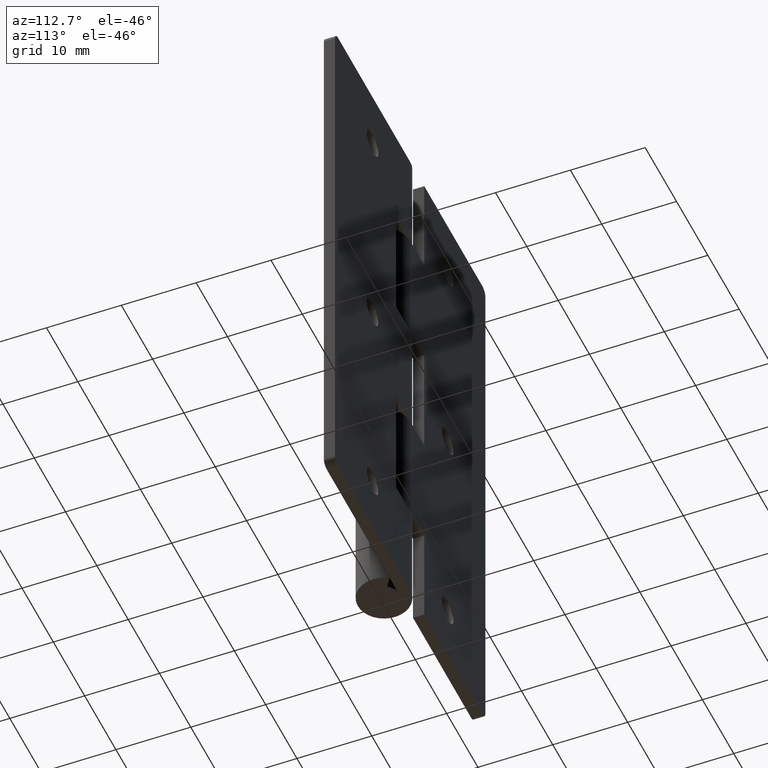
[diagram: clean part render]
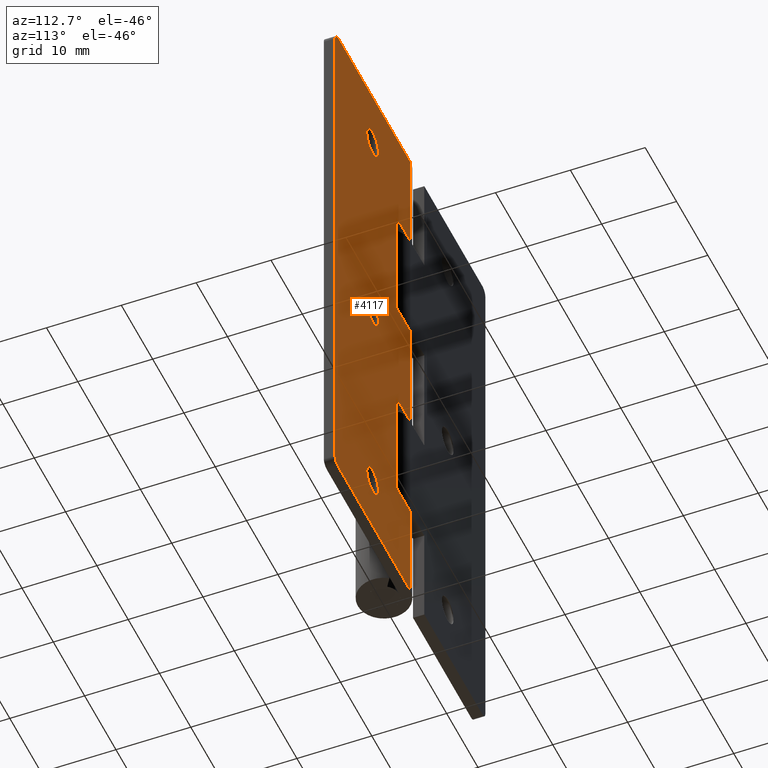
[diagram: same view with one face highlighted and labeled with its STEP entity id]
A machine part, auxiliary view. The second image highlights one B-rep face of the part: STEP entity #4117.
In plain terms, the highlighted face is a freeform B-spline surface patch.
Its self-contained STEP definition (entity closure, byte-faithful):
#2225=CARTESIAN_POINT('',(13.837918003186140,3.500000000000000,67.788921729569537));
#2226=VERTEX_POINT('',#2225);
#2232=CARTESIAN_POINT('',(12.0,3.500000000000000,66.150008000000099));
#2233=VERTEX_POINT('',#2232);
#2234=CARTESIAN_POINT('',(13.837918003186143,3.500000000000000,67.788921729569537));
#2235=CARTESIAN_POINT('',(13.649687487106965,3.500000000000000,66.150008000000099));
#2236=CARTESIAN_POINT('',(12.0,3.500000000000000,66.150008000000099));
#2244=(BOUNDED_CURVE()B_SPLINE_CURVE(2,(#2234,#2235,#2236),.UNSPECIFIED.,.F.,.U.)B_SPLINE_CURVE_WITH_KNOTS((3,3),(0.269767763364742,0.500000000000000),.UNSPECIFIED.)CURVE()GEOMETRIC_REPRESENTATION_ITEM()RATIONAL_B_SPLINE_CURVE((0.957343721689604,0.730266156549116,1.0))REPRESENTATION_ITEM(''));
#2245=EDGE_CURVE('',#2226,#2233,#2244,.T.);
#2247=CARTESIAN_POINT('',(10.153450622949880,3.500000000000000,67.887068201364613));
#2248=VERTEX_POINT('',#2247);
#2249=CARTESIAN_POINT('',(12.0,3.500000000000000,66.150008000000099));
#2250=CARTESIAN_POINT('',(10.259693777161120,3.500000000000000,66.150008000000099));
#2251=CARTESIAN_POINT('',(10.153450622949883,3.500000000000000,67.887068201364613));
#2259=(BOUNDED_CURVE()B_SPLINE_CURVE(2,(#2249,#2250,#2251),.UNSPECIFIED.,.F.,.U.)B_SPLINE_CURVE_WITH_KNOTS((3,3),(0.500000000000000,0.739332962149275),.UNSPECIFIED.)CURVE()GEOMETRIC_REPRESENTATION_ITEM()RATIONAL_B_SPLINE_CURVE((1.0,0.719603993391763,0.976072041474541))REPRESENTATION_ITEM(''));
#2260=EDGE_CURVE('',#2233,#2248,#2259,.T.);
#2359=CARTESIAN_POINT('',(12.0,3.500000000000000,69.850008000000102));
#2360=VERTEX_POINT('',#2359);
#2361=CARTESIAN_POINT('',(10.153450622949883,3.500000000000000,67.887068201364613));
#2362=CARTESIAN_POINT('',(10.150000000000000,3.500000000000000,67.943485387400315));
#2363=CARTESIAN_POINT('',(10.150000000000000,3.500000000000000,68.000008000000093));
#2364=CARTESIAN_POINT('',(10.150000000000000,3.499999999999999,69.850008000000102));
#2365=CARTESIAN_POINT('',(12.0,3.500000000000000,69.850008000000102));
#2373=(BOUNDED_CURVE()B_SPLINE_CURVE(2,(#2361,#2362,#2363,#2364,#2365),.UNSPECIFIED.,.F.,.U.)B_SPLINE_CURVE_WITH_KNOTS((3,2,3),(0.739332962149274,0.750000000000000,1.0),.UNSPECIFIED.)CURVE()GEOMETRIC_REPRESENTATION_ITEM()RATIONAL_B_SPLINE_CURVE((0.976072041474539,0.987502787794783,1.0,0.707106781186548,1.0))REPRESENTATION_ITEM(''));
#2374=EDGE_CURVE('',#2248,#2360,#2373,.T.);
#2376=CARTESIAN_POINT('',(12.0,3.500000000000000,69.850008000000102));
#2377=CARTESIAN_POINT('',(13.850000000000000,3.499999999999999,69.850008000000102));
#2378=CARTESIAN_POINT('',(13.850000000000000,3.500000000000000,68.000008000000093));
#2379=CARTESIAN_POINT('',(13.850000000000009,3.500000000000000,67.894119074141045));
#2380=CARTESIAN_POINT('',(13.837918003186141,3.500000000000000,67.788921729569537));
#2388=(BOUNDED_CURVE()B_SPLINE_CURVE(2,(#2376,#2377,#2378,#2379,#2380),.UNSPECIFIED.,.F.,.U.)B_SPLINE_CURVE_WITH_KNOTS((3,2,3),(0.0,0.250000000000000,0.269767763364742),.UNSPECIFIED.)CURVE()GEOMETRIC_REPRESENTATION_ITEM()RATIONAL_B_SPLINE_CURVE((1.0,0.707106781186548,1.0,0.976840624637432,0.957343721689604))REPRESENTATION_ITEM(''));
#2389=EDGE_CURVE('',#2360,#2226,#2388,.T.);
#2557=CARTESIAN_POINT('',(13.837918003186140,3.500000000000000,37.788921729569573));
#2558=VERTEX_POINT('',#2557);
#2564=CARTESIAN_POINT('',(12.0,3.500000000000000,36.150008000000099));
#2565=VERTEX_POINT('',#2564);
#2566=CARTESIAN_POINT('',(13.837918003186140,3.500000000000000,37.788921729569566));
#2567=CARTESIAN_POINT('',(13.649687487106975,3.500000000000000,36.150008000000106));
#2568=CARTESIAN_POINT('',(12.0,3.500000000000000,36.150008000000099));
#2576=(BOUNDED_CURVE()B_SPLINE_CURVE(2,(#2566,#2567,#2568),.UNSPECIFIED.,.F.,.U.)B_SPLINE_CURVE_WITH_KNOTS((3,3),(0.269767763364741,0.500000000000000),.UNSPECIFIED.)CURVE()GEOMETRIC_REPRESENTATION_ITEM()RATIONAL_B_SPLINE_CURVE((0.957343721689606,0.730266156549114,1.0))REPRESENTATION_ITEM(''));
#2577=EDGE_CURVE('',#2558,#2565,#2576,.T.);
#2579=CARTESIAN_POINT('',(10.153450622949880,3.500000000000000,37.887068201364613));
#2580=VERTEX_POINT('',#2579);
#2581=CARTESIAN_POINT('',(12.0,3.500000000000000,36.150008000000099));
#2582=CARTESIAN_POINT('',(10.259693777161143,3.500000000000000,36.150008000000099));
#2583=CARTESIAN_POINT('',(10.153450622949883,3.500000000000000,37.887068201364613));
#2591=(BOUNDED_CURVE()B_SPLINE_CURVE(2,(#2581,#2582,#2583),.UNSPECIFIED.,.F.,.U.)B_SPLINE_CURVE_WITH_KNOTS((3,3),(0.500000000000000,0.739332962149272),.UNSPECIFIED.)CURVE()GEOMETRIC_REPRESENTATION_ITEM()RATIONAL_B_SPLINE_CURVE((1.0,0.719603993391766,0.976072041474537))REPRESENTATION_ITEM(''));
#2592=EDGE_CURVE('',#2565,#2580,#2591,.T.);
#2691=CARTESIAN_POINT('',(12.0,3.500000000000000,39.850008000000102));
#2692=VERTEX_POINT('',#2691);
#2693=CARTESIAN_POINT('',(10.153450622949883,3.500000000000000,37.887068201364613));
#2694=CARTESIAN_POINT('',(10.149999999999995,3.500000000000000,37.943485387400315));
#2695=CARTESIAN_POINT('',(10.150000000000000,3.500000000000000,38.000008000000101));
#2696=CARTESIAN_POINT('',(10.150000000000000,3.499999999999999,39.850008000000095));
#2697=CARTESIAN_POINT('',(12.0,3.500000000000000,39.850008000000102));
#2705=(BOUNDED_CURVE()B_SPLINE_CURVE(2,(#2693,#2694,#2695,#2696,#2697),.UNSPECIFIED.,.F.,.U.)B_SPLINE_CURVE_WITH_KNOTS((3,2,3),(0.739332962149272,0.750000000000000,1.0),.UNSPECIFIED.)CURVE()GEOMETRIC_REPRESENTATION_ITEM()RATIONAL_B_SPLINE_CURVE((0.976072041474537,0.987502787794782,1.0,0.707106781186548,1.0))REPRESENTATION_ITEM(''));
#2706=EDGE_CURVE('',#2580,#2692,#2705,.T.);
#2708=CARTESIAN_POINT('',(12.0,3.500000000000000,39.850008000000102));
#2709=CARTESIAN_POINT('',(13.850000000000000,3.499999999999999,39.850008000000095));
#2710=CARTESIAN_POINT('',(13.850000000000000,3.500000000000000,38.000008000000101));
#2711=CARTESIAN_POINT('',(13.850000000000000,3.500000000000000,37.894119074141059));
#2712=CARTESIAN_POINT('',(13.837918003186138,3.500000000000000,37.788921729569566));
#2720=(BOUNDED_CURVE()B_SPLINE_CURVE(2,(#2708,#2709,#2710,#2711,#2712),.UNSPECIFIED.,.F.,.U.)B_SPLINE_CURVE_WITH_KNOTS((3,2,3),(0.0,0.250000000000000,0.269767763364741),.UNSPECIFIED.)CURVE()GEOMETRIC_REPRESENTATION_ITEM()RATIONAL_B_SPLINE_CURVE((1.0,0.707106781186548,1.0,0.976840624637433,0.957343721689606))REPRESENTATION_ITEM(''));
#2721=EDGE_CURVE('',#2692,#2558,#2720,.T.);
#2889=CARTESIAN_POINT('',(13.837918003186140,3.500000000000000,7.788913729569559));
#2890=VERTEX_POINT('',#2889);
#2896=CARTESIAN_POINT('',(12.0,3.500000000000000,6.150000000000101));
#2897=VERTEX_POINT('',#2896);
#2898=CARTESIAN_POINT('',(13.837918003186136,3.500000000000000,7.788913729569559));
#2899=CARTESIAN_POINT('',(13.649687487106974,3.500000000000000,6.150000000000102));
#2900=CARTESIAN_POINT('',(12.0,3.500000000000000,6.150000000000101));
#2908=(BOUNDED_CURVE()B_SPLINE_CURVE(2,(#2898,#2899,#2900),.UNSPECIFIED.,.F.,.U.)B_SPLINE_CURVE_WITH_KNOTS((3,3),(0.269767763364741,0.500000000000000),.UNSPECIFIED.)CURVE()GEOMETRIC_REPRESENTATION_ITEM()RATIONAL_B_SPLINE_CURVE((0.957343721689606,0.730266156549115,1.0))REPRESENTATION_ITEM(''));
#2909=EDGE_CURVE('',#2890,#2897,#2908,.T.);
#2911=CARTESIAN_POINT('',(10.153450622949880,3.500000000000000,7.887060201364612));
#2912=VERTEX_POINT('',#2911);
#2913=CARTESIAN_POINT('',(12.0,3.500000000000000,6.150000000000101));
#2914=CARTESIAN_POINT('',(10.259693777161143,3.500000000000000,6.150000000000102));
#2915=CARTESIAN_POINT('',(10.153450622949883,3.500000000000000,7.887060201364612));
#2923=(BOUNDED_CURVE()B_SPLINE_CURVE(2,(#2913,#2914,#2915),.UNSPECIFIED.,.F.,.U.)B_SPLINE_CURVE_WITH_KNOTS((3,3),(0.500000000000000,0.739332962149272),.UNSPECIFIED.)CURVE()GEOMETRIC_REPRESENTATION_ITEM()RATIONAL_B_SPLINE_CURVE((1.0,0.719603993391766,0.976072041474537))REPRESENTATION_ITEM(''));
#2924=EDGE_CURVE('',#2897,#2912,#2923,.T.);
#3023=CARTESIAN_POINT('',(12.0,3.500000000000000,9.850000000000101));
#3024=VERTEX_POINT('',#3023);
#3025=CARTESIAN_POINT('',(10.153450622949883,3.500000000000000,7.887060201364612));
#3026=CARTESIAN_POINT('',(10.149999999999995,3.500000000000000,7.943477387400318));
#3027=CARTESIAN_POINT('',(10.150000000000000,3.500000000000000,8.000000000000101));
#3028=CARTESIAN_POINT('',(10.150000000000000,3.499999999999999,9.850000000000099));
#3029=CARTESIAN_POINT('',(12.0,3.500000000000000,9.850000000000101));
#3037=(BOUNDED_CURVE()B_SPLINE_CURVE(2,(#3025,#3026,#3027,#3028,#3029),.UNSPECIFIED.,.F.,.U.)B_SPLINE_CURVE_WITH_KNOTS((3,2,3),(0.739332962149272,0.750000000000000,1.0),.UNSPECIFIED.)CURVE()GEOMETRIC_REPRESENTATION_ITEM()RATIONAL_B_SPLINE_CURVE((0.976072041474537,0.987502787794782,1.0,0.707106781186548,1.0))REPRESENTATION_ITEM(''));
#3038=EDGE_CURVE('',#2912,#3024,#3037,.T.);
#3040=CARTESIAN_POINT('',(12.0,3.500000000000000,9.850000000000101));
#3041=CARTESIAN_POINT('',(13.850000000000000,3.499999999999999,9.850000000000099));
#3042=CARTESIAN_POINT('',(13.850000000000000,3.500000000000000,8.000000000000101));
#3043=CARTESIAN_POINT('',(13.850000000000005,3.500000000000000,7.894111074141056));
#3044=CARTESIAN_POINT('',(13.837918003186138,3.500000000000000,7.788913729569559));
#3052=(BOUNDED_CURVE()B_SPLINE_CURVE(2,(#3040,#3041,#3042,#3043,#3044),.UNSPECIFIED.,.F.,.U.)B_SPLINE_CURVE_WITH_KNOTS((3,2,3),(0.0,0.250000000000000,0.269767763364742),.UNSPECIFIED.)CURVE()GEOMETRIC_REPRESENTATION_ITEM()RATIONAL_B_SPLINE_CURVE((1.0,0.707106781186548,1.0,0.976840624637433,0.957343721689605))REPRESENTATION_ITEM(''));
#3053=EDGE_CURVE('',#3024,#2890,#3052,.T.);
#3191=CARTESIAN_POINT('',(4.500000000000000,3.499999999999950,62.000008000000101));
#3192=VERTEX_POINT('',#3191);
#3200=CARTESIAN_POINT('',(4.500000000000000,3.499999999999950,46.000008000000101));
#3201=VERTEX_POINT('',#3200);
#3202=CARTESIAN_POINT('',(4.500000000000000,3.499999999999950,62.000008000000101));
#3203=CARTESIAN_POINT('',(4.500000000000000,3.499999999999950,46.000008000000101));
#3204=QUASI_UNIFORM_CURVE('',1,(#3202,#3203),.UNSPECIFIED.,.F.,.U.);
#3205=EDGE_CURVE('',#3192,#3201,#3204,.T.);
#3228=CARTESIAN_POINT('',(0.0,3.499999999999950,46.000008000000101));
#3229=VERTEX_POINT('',#3228);
#3230=CARTESIAN_POINT('',(4.500000000000000,3.499999999999950,46.000008000000101));
#3231=CARTESIAN_POINT('',(0.0,3.499999999999950,46.000008000000101));
#3232=QUASI_UNIFORM_CURVE('',1,(#3230,#3231),.UNSPECIFIED.,.F.,.U.);
#3233=EDGE_CURVE('',#3201,#3229,#3232,.T.);
#3299=CARTESIAN_POINT('',(0.0,3.499999999999950,62.000008000000101));
#3300=VERTEX_POINT('',#3299);
#3320=CARTESIAN_POINT('',(0.0,3.499999999999950,62.000008000000101));
#3321=CARTESIAN_POINT('',(4.500000000000000,3.499999999999950,62.000008000000101));
#3322=QUASI_UNIFORM_CURVE('',1,(#3320,#3321),.UNSPECIFIED.,.F.,.U.);
#3323=EDGE_CURVE('',#3300,#3192,#3322,.T.);
#3367=CARTESIAN_POINT('',(4.500000000000000,3.499999999999950,30.000008000000101));
#3368=VERTEX_POINT('',#3367);
#3376=CARTESIAN_POINT('',(4.500000000000000,3.499999999999950,14.0));
#3377=VERTEX_POINT('',#3376);
#3378=CARTESIAN_POINT('',(4.500000000000000,3.499999999999950,30.000008000000101));
#3379=CARTESIAN_POINT('',(4.500000000000000,3.499999999999950,14.0));
#3380=QUASI_UNIFORM_CURVE('',1,(#3378,#3379),.UNSPECIFIED.,.F.,.U.);
#3381=EDGE_CURVE('',#3368,#3377,#3380,.T.);
#3404=CARTESIAN_POINT('',(0.0,3.499999999999950,14.0));
#3405=VERTEX_POINT('',#3404);
#3406=CARTESIAN_POINT('',(4.500000000000000,3.499999999999950,14.0));
#3407=CARTESIAN_POINT('',(0.0,3.499999999999950,14.0));
#3408=QUASI_UNIFORM_CURVE('',1,(#3406,#3407),.UNSPECIFIED.,.F.,.U.);
#3409=EDGE_CURVE('',#3377,#3405,#3408,.T.);
#3475=CARTESIAN_POINT('',(0.0,3.499999999999950,30.000008000000101));
#3476=VERTEX_POINT('',#3475);
#3496=CARTESIAN_POINT('',(0.0,3.499999999999950,30.000008000000101));
#3497=CARTESIAN_POINT('',(4.500000000000000,3.499999999999950,30.000008000000101));
#3498=QUASI_UNIFORM_CURVE('',1,(#3496,#3497),.UNSPECIFIED.,.F.,.U.);
#3499=EDGE_CURVE('',#3476,#3368,#3498,.T.);
#3569=CARTESIAN_POINT('',(23.999991999999899,3.499999999999950,75.000008000000108));
#3570=VERTEX_POINT('',#3569);
#3576=CARTESIAN_POINT('',(22.999991999999899,3.500000000000000,76.000008000000093));
#3577=VERTEX_POINT('',#3576);
#3578=CARTESIAN_POINT('',(23.999991999999899,3.499999999999950,75.000008000000108));
#3579=CARTESIAN_POINT('',(23.999991999999896,3.499999999999949,76.000008000000108));
#3580=CARTESIAN_POINT('',(22.999991999999899,3.499999999999950,76.000008000000108));
#3588=(BOUNDED_CURVE()B_SPLINE_CURVE(2,(#3578,#3579,#3580),.UNSPECIFIED.,.F.,.U.)CURVE()GEOMETRIC_REPRESENTATION_ITEM()QUASI_UNIFORM_CURVE()RATIONAL_B_SPLINE_CURVE((1.0,0.707106781186548,1.0))REPRESENTATION_ITEM(''));
#3589=EDGE_CURVE('',#3570,#3577,#3588,.T.);
#3630=CARTESIAN_POINT('',(22.999991999999899,3.499999999999950,0.0));
#3631=VERTEX_POINT('',#3630);
#3637=CARTESIAN_POINT('',(23.999991999999899,3.499999999999950,1.0));
#3638=VERTEX_POINT('',#3637);
#3639=CARTESIAN_POINT('',(22.999991999999899,3.499999999999950,0.0));
#3640=CARTESIAN_POINT('',(23.999991999999896,3.499999999999949,0.0));
#3641=CARTESIAN_POINT('',(23.999991999999899,3.499999999999950,1.0));
#3649=(BOUNDED_CURVE()B_SPLINE_CURVE(2,(#3639,#3640,#3641),.UNSPECIFIED.,.F.,.U.)CURVE()GEOMETRIC_REPRESENTATION_ITEM()QUASI_UNIFORM_CURVE()RATIONAL_B_SPLINE_CURVE((1.0,0.707106781186548,1.0))REPRESENTATION_ITEM(''));
#3650=EDGE_CURVE('',#3631,#3638,#3649,.T.);
#3673=CARTESIAN_POINT('',(0.0,3.500000000000000,76.000008000000093));
#3674=VERTEX_POINT('',#3673);
#3675=CARTESIAN_POINT('',(22.999991999999899,3.500000000000000,76.000008000000093));
#3676=CARTESIAN_POINT('',(0.0,3.500000000000000,76.000008000000093));
#3677=QUASI_UNIFORM_CURVE('',1,(#3675,#3676),.UNSPECIFIED.,.F.,.U.);
#3678=EDGE_CURVE('',#3577,#3674,#3677,.T.);
#3771=CARTESIAN_POINT('',(0.0,3.500000000000000,0.0));
#3772=VERTEX_POINT('',#3771);
#3792=CARTESIAN_POINT('',(22.999991999999899,3.499999999999950,0.0));
#3793=CARTESIAN_POINT('',(0.0,3.500000000000000,0.0));
#3794=QUASI_UNIFORM_CURVE('',1,(#3792,#3793),.UNSPECIFIED.,.F.,.U.);
#3795=EDGE_CURVE('',#3631,#3772,#3794,.T.);
#3805=CARTESIAN_POINT('',(23.999991999999899,3.499999999999950,1.0));
#3806=CARTESIAN_POINT('',(23.999991999999899,3.499999999999950,75.000008000000108));
#3807=QUASI_UNIFORM_CURVE('',1,(#3805,#3806),.UNSPECIFIED.,.F.,.U.);
#3808=EDGE_CURVE('',#3638,#3570,#3807,.T.);
#3863=CARTESIAN_POINT('',(0.0,3.500000000000000,0.0));
#3864=CARTESIAN_POINT('',(0.0,3.499999999999950,14.0));
#3865=QUASI_UNIFORM_CURVE('',1,(#3863,#3864),.UNSPECIFIED.,.F.,.U.);
#3866=EDGE_CURVE('',#3772,#3405,#3865,.T.);
#3969=CARTESIAN_POINT('',(0.0,3.499999999999950,30.000008000000101));
#3970=CARTESIAN_POINT('',(0.0,3.499999999999950,46.000008000000101));
#3971=QUASI_UNIFORM_CURVE('',1,(#3969,#3970),.UNSPECIFIED.,.F.,.U.);
#3972=EDGE_CURVE('',#3476,#3229,#3971,.T.);
#4004=CARTESIAN_POINT('',(0.0,3.499999999999950,62.000008000000101));
#4005=CARTESIAN_POINT('',(0.0,3.500000000000000,76.000008000000093));
#4006=QUASI_UNIFORM_CURVE('',1,(#4004,#4005),.UNSPECIFIED.,.F.,.U.);
#4007=EDGE_CURVE('',#3300,#3674,#4006,.T.);
#4078=CARTESIAN_POINT('',(-1.198799553883352,3.500000000000000,-3.796200252297245));
#4079=CARTESIAN_POINT('',(-1.198799553883352,3.500000000000000,79.796210290776401));
#4080=CARTESIAN_POINT('',(25.198792197613201,3.500000000000000,-3.796200252297245));
#4081=CARTESIAN_POINT('',(25.198792197613201,3.500000000000000,79.796210290776401));
#4082=B_SPLINE_SURFACE_WITH_KNOTS('',1,1,((#4078,#4080),(#4079,#4081)),.UNSPECIFIED.,.F.,.F.,.U.,(2,2),(2,2),(0.0,83.592410543073640),(0.0,26.397591751496549),.UNSPECIFIED.);
#4083=ORIENTED_EDGE('',*,*,#3205,.F.);
#4084=ORIENTED_EDGE('',*,*,#3323,.F.);
#4085=ORIENTED_EDGE('',*,*,#4007,.T.);
#4086=ORIENTED_EDGE('',*,*,#3678,.F.);
#4087=ORIENTED_EDGE('',*,*,#3589,.F.);
#4088=ORIENTED_EDGE('',*,*,#3808,.F.);
#4089=ORIENTED_EDGE('',*,*,#3650,.F.);
#4090=ORIENTED_EDGE('',*,*,#3795,.T.);
#4091=ORIENTED_EDGE('',*,*,#3866,.T.);
#4092=ORIENTED_EDGE('',*,*,#3409,.F.);
#4093=ORIENTED_EDGE('',*,*,#3381,.F.);
#4094=ORIENTED_EDGE('',*,*,#3499,.F.);
#4095=ORIENTED_EDGE('',*,*,#3972,.T.);
#4096=ORIENTED_EDGE('',*,*,#3233,.F.);
#4097=EDGE_LOOP('',(#4083,#4084,#4085,#4086,#4087,#4088,#4089,#4090,#4091,#4092,#4093,#4094,#4095,#4096));
#4098=FACE_OUTER_BOUND('',#4097,.T.);
#4099=ORIENTED_EDGE('',*,*,#2924,.F.);
#4100=ORIENTED_EDGE('',*,*,#2909,.F.);
#4101=ORIENTED_EDGE('',*,*,#3053,.F.);
#4102=ORIENTED_EDGE('',*,*,#3038,.F.);
#4103=EDGE_LOOP('',(#4099,#4100,#4101,#4102));
#4104=FACE_BOUND('',#4103,.T.);
#4105=ORIENTED_EDGE('',*,*,#2592,.F.);
#4106=ORIENTED_EDGE('',*,*,#2577,.F.);
#4107=ORIENTED_EDGE('',*,*,#2721,.F.);
#4108=ORIENTED_EDGE('',*,*,#2706,.F.);
#4109=EDGE_LOOP('',(#4105,#4106,#4107,#4108));
#4110=FACE_BOUND('',#4109,.T.);
#4111=ORIENTED_EDGE('',*,*,#2260,.F.);
#4112=ORIENTED_EDGE('',*,*,#2245,.F.);
#4113=ORIENTED_EDGE('',*,*,#2389,.F.);
#4114=ORIENTED_EDGE('',*,*,#2374,.F.);
#4115=EDGE_LOOP('',(#4111,#4112,#4113,#4114));
#4116=FACE_BOUND('',#4115,.T.);
#4117=ADVANCED_FACE('',(#4098,#4104,#4110,#4116),#4082,.T.);